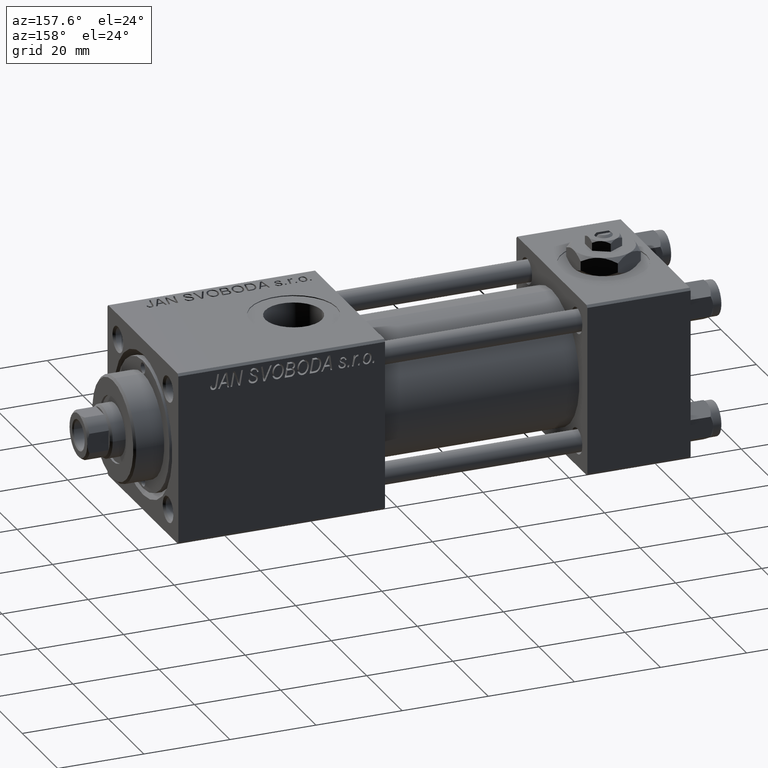
[diagram: clean part render]
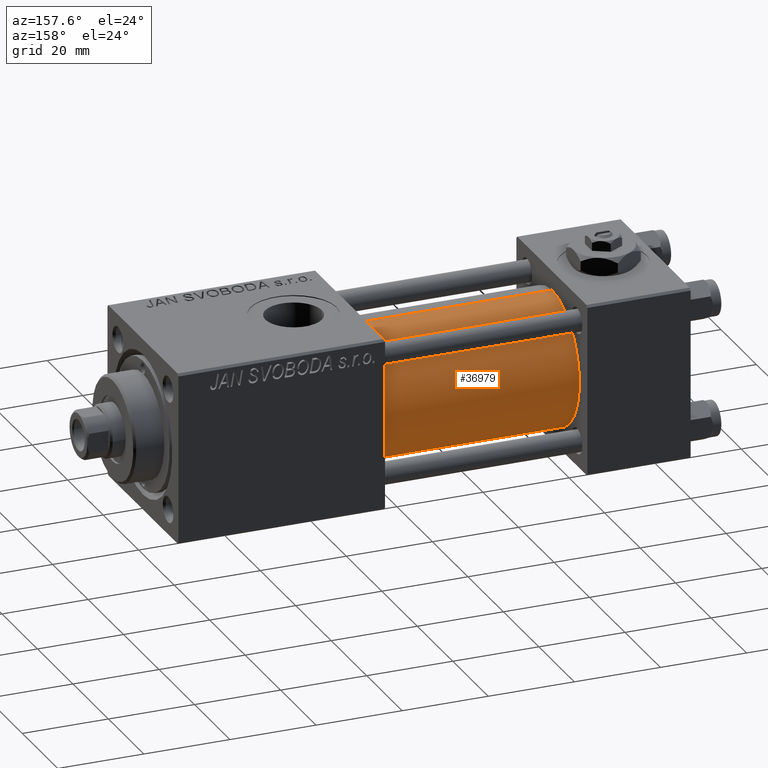
[diagram: same view with one face highlighted and labeled with its STEP entity id]
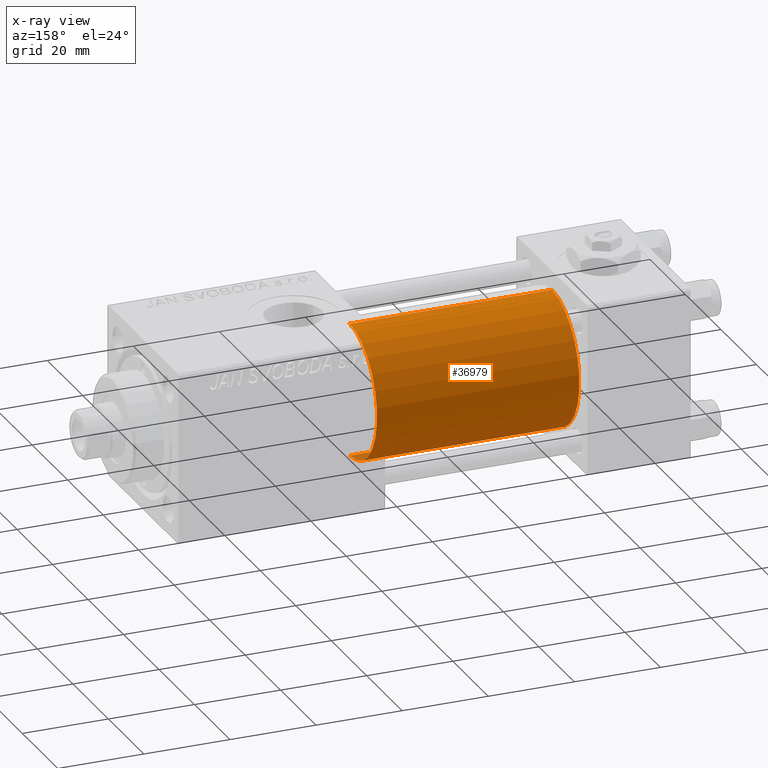
[diagram: x-ray of the same camera — body ghosted, the highlighted face saturated]
A machine part, auxiliary view. The second image highlights one B-rep face of the part: STEP entity #36979.
The next image is the same camera in x-ray: the body ghosted, the highlighted face saturated — about 0% of this face is hidden behind the body in this view.
In plain terms, the highlighted cylindrical surface (partial cylindrical patch) has radius 15.5 mm, axis along (-1, -0, -0).
Its self-contained STEP definition (entity closure, byte-faithful):
#1433 = EDGE_CURVE ( 'NONE', #45341, #39596, #15745, .T. ) ;
#1665 = DIRECTION ( 'NONE',  ( 0.000000000000000000, 0.000000000000000000, 1.000000000000000000 ) ) ;
#1779 = CIRCLE ( 'NONE', #22859, 15.50000000000000000 ) ;
#4094 = CARTESIAN_POINT ( 'NONE',  ( 24.00000000000000000, -2.602085213965210642E-15, 0.000000000000000000 ) ) ;
#4311 = VECTOR ( 'NONE', #12304, 1000.000000000000000 ) ;
#4353 = DIRECTION ( 'NONE',  ( 1.000000000000000000, 0.000000000000000000, 0.000000000000000000 ) ) ;
#4874 = DIRECTION ( 'NONE',  ( 0.000000000000000000, 0.000000000000000000, 1.000000000000000000 ) ) ;
#4950 = DIRECTION ( 'NONE',  ( -1.000000000000000000, -0.000000000000000000, -0.000000000000000000 ) ) ;
#7722 = ORIENTED_EDGE ( 'NONE', *, *, #1433, .T. ) ;
#9032 = ORIENTED_EDGE ( 'NONE', *, *, #49034, .F. ) ;
#10099 = DIRECTION ( 'NONE',  ( -1.000000000000000000, -0.000000000000000000, -0.000000000000000000 ) ) ;
#11793 = EDGE_LOOP ( 'NONE', ( #9032, #7722, #19596, #24464 ) ) ;
#12304 = DIRECTION ( 'NONE',  ( -1.000000000000000000, -0.000000000000000000, -0.000000000000000000 ) ) ;
#12887 = EDGE_CURVE ( 'NONE', #39596, #19713, #20589, .T. ) ;
#15745 = LINE ( 'NONE', #27661, #4311 ) ;
#18452 = CARTESIAN_POINT ( 'NONE',  ( 71.00000000000001421, -2.602085213965210642E-15, 15.50000000000000000 ) ) ;
#18771 = CARTESIAN_POINT ( 'NONE',  ( 71.00000000000001421, -2.602085213965210642E-15, 0.000000000000000000 ) ) ;
#19596 = ORIENTED_EDGE ( 'NONE', *, *, #12887, .T. ) ;
#19713 = VERTEX_POINT ( 'NONE', #42747 ) ;
#20095 = CARTESIAN_POINT ( 'NONE',  ( 71.00000000000001421, -7.038826752868131828E-16, -15.50000000000000000 ) ) ;
#20589 = CIRCLE ( 'NONE', #24821, 15.50000000000000000 ) ;
#20687 = CARTESIAN_POINT ( 'NONE',  ( 24.00000000000000000, -7.038826752868131828E-16, -15.50000000000000000 ) ) ;
#21714 = CYLINDRICAL_SURFACE ( 'NONE', #49625, 15.50000000000000000 ) ;
#22859 = AXIS2_PLACEMENT_3D ( 'NONE', #46428, #26299, #33986 ) ;
#24464 = ORIENTED_EDGE ( 'NONE', *, *, #52227, .F. ) ;
#24821 = AXIS2_PLACEMENT_3D ( 'NONE', #4094, #4353, #4874 ) ;
#26299 = DIRECTION ( 'NONE',  ( 1.000000000000000000, 0.000000000000000000, 0.000000000000000000 ) ) ;
#27661 = CARTESIAN_POINT ( 'NONE',  ( 71.00000000000001421, -7.038826752868131828E-16, -15.50000000000000000 ) ) ;
#29936 = FACE_OUTER_BOUND ( 'NONE', #11793, .T. ) ;
#30029 = CARTESIAN_POINT ( 'NONE',  ( 71.00000000000001421, -2.602085213965210642E-15, 15.50000000000000000 ) ) ;
#33986 = DIRECTION ( 'NONE',  ( 0.000000000000000000, 0.000000000000000000, -1.000000000000000000 ) ) ;
#36979 = ADVANCED_FACE ( 'NONE', ( #29936 ), #21714, .T. ) ;
#37151 = VERTEX_POINT ( 'NONE', #18452 ) ;
#39596 = VERTEX_POINT ( 'NONE', #20687 ) ;
#42747 = CARTESIAN_POINT ( 'NONE',  ( 24.00000000000000000, -2.602085213965210642E-15, 15.50000000000000000 ) ) ;
#45341 = VERTEX_POINT ( 'NONE', #20095 ) ;
#46428 = CARTESIAN_POINT ( 'NONE',  ( 71.00000000000001421, -2.602085213965210642E-15, 0.000000000000000000 ) ) ;
#49034 = EDGE_CURVE ( 'NONE', #45341, #37151, #1779, .T. ) ;
#49379 = LINE ( 'NONE', #30029, #50881 ) ;
#49625 = AXIS2_PLACEMENT_3D ( 'NONE', #18771, #10099, #1665 ) ;
#50881 = VECTOR ( 'NONE', #4950, 1000.000000000000000 ) ;
#52227 = EDGE_CURVE ( 'NONE', #37151, #19713, #49379, .T. ) ;